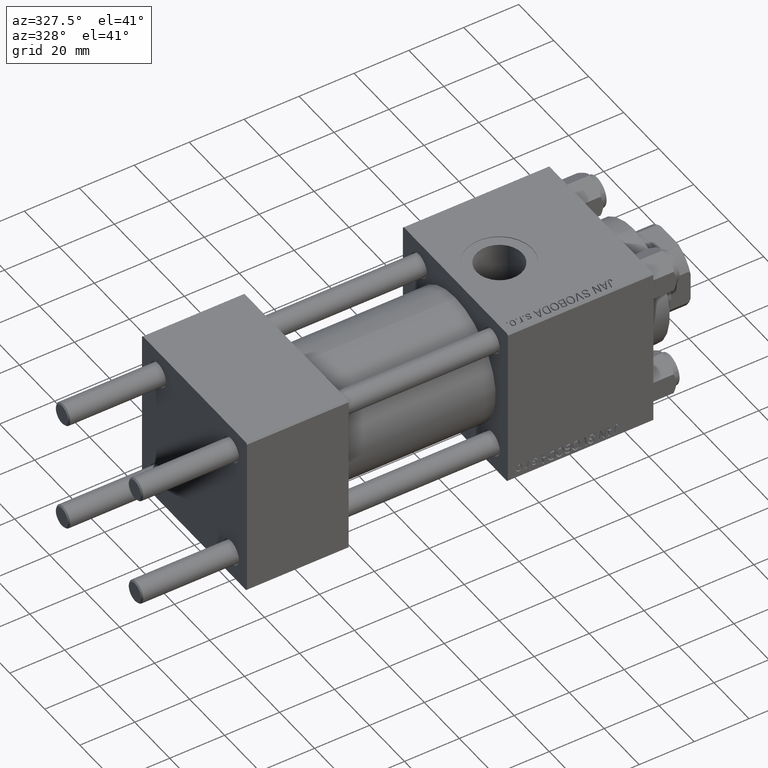
[diagram: clean part render]
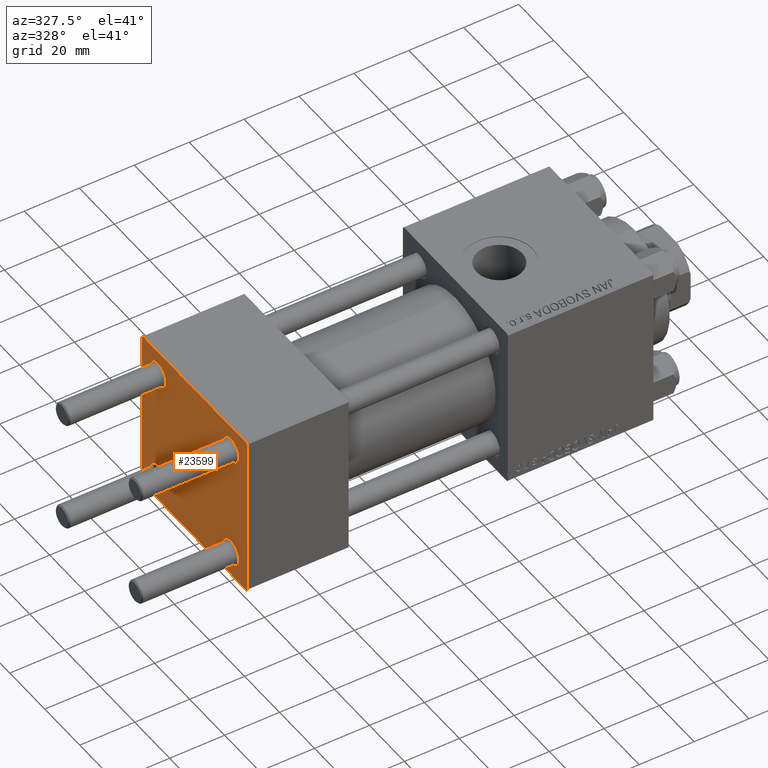
[diagram: same view with one face highlighted and labeled with its STEP entity id]
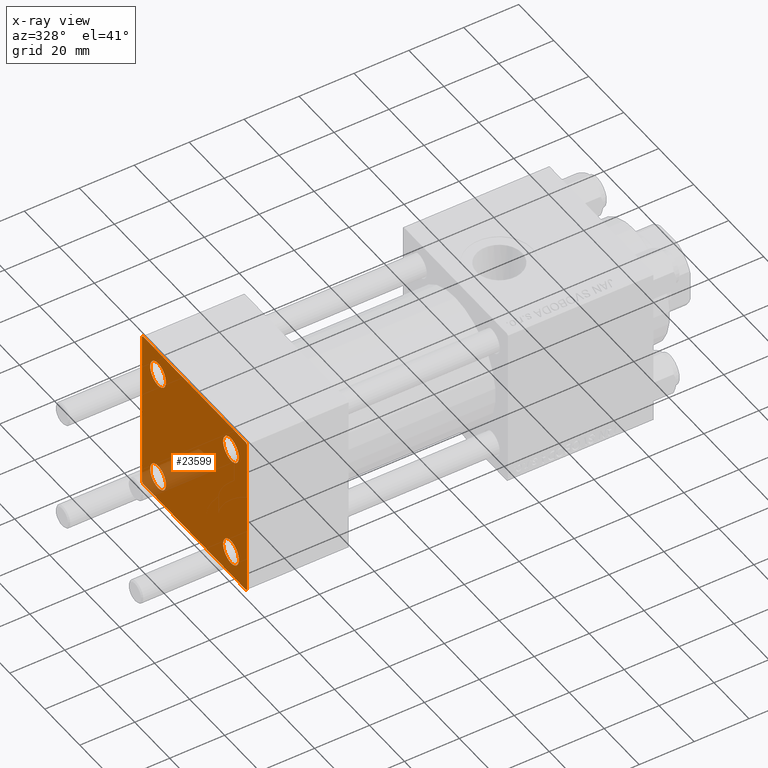
[diagram: x-ray of the same camera — body ghosted, the highlighted face saturated]
A machine part, auxiliary view. The second image highlights one B-rep face of the part: STEP entity #23599.
The next image is the same camera in x-ray: the body ghosted, the highlighted face saturated — about 10% of this face is hidden behind the body in this view.
In plain terms, the highlighted planar face has unit normal (-1, 0, 0).
Its self-contained STEP definition (entity closure, byte-faithful):
#683 = EDGE_LOOP ( 'NONE', ( #32842, #10502 ) ) ;
#699 = VERTEX_POINT ( 'NONE', #13706 ) ;
#726 = EDGE_CURVE ( 'NONE', #23417, #1160, #4176, .T. ) ;
#991 = DIRECTION ( 'NONE',  ( 1.000000000000000000, -0.000000000000000000, 0.000000000000000000 ) ) ;
#1120 = ORIENTED_EDGE ( 'NONE', *, *, #38349, .F. ) ;
#1160 = VERTEX_POINT ( 'NONE', #12114 ) ;
#1555 = DIRECTION ( 'NONE',  ( 0.000000000000000000, -0.7071067811865474617, 0.7071067811865474617 ) ) ;
#1992 = AXIS2_PLACEMENT_3D ( 'NONE', #14550, #45333, #15556 ) ;
#2173 = CIRCLE ( 'NONE', #2948, 4.500000000000017764 ) ;
#2302 = EDGE_CURVE ( 'NONE', #34881, #22903, #49658, .T. ) ;
#2948 = AXIS2_PLACEMENT_3D ( 'NONE', #49080, #5948, #21346 ) ;
#3414 = VECTOR ( 'NONE', #34273, 1000.000000000000114 ) ;
#3493 = ORIENTED_EDGE ( 'NONE', *, *, #35188, .T. ) ;
#3678 = VECTOR ( 'NONE', #36176, 1000.000000000000000 ) ;
#4176 = CIRCLE ( 'NONE', #39638, 4.500000000000017764 ) ;
#4544 = CARTESIAN_POINT ( 'NONE',  ( 0.000000000000000000, 29.99999999999999289, 29.50000000000000000 ) ) ;
#5427 = FACE_BOUND ( 'NONE', #47183, .T. ) ;
#5559 = CARTESIAN_POINT ( 'NONE',  ( 0.000000000000000000, 20.84999999999999787, 20.85000000000000142 ) ) ;
#5671 = PLANE ( 'NONE',  #47405 ) ;
#5948 = DIRECTION ( 'NONE',  ( 1.000000000000000000, -0.000000000000000000, 0.000000000000000000 ) ) ;
#6353 = EDGE_CURVE ( 'NONE', #47283, #17637, #30147, .T. ) ;
#8059 = ORIENTED_EDGE ( 'NONE', *, *, #40250, .T. ) ;
#8081 = DIRECTION ( 'NONE',  ( 1.000000000000000000, -0.000000000000000000, 0.000000000000000000 ) ) ;
#8237 = EDGE_CURVE ( 'NONE', #17637, #47283, #9370, .T. ) ;
#8857 = CARTESIAN_POINT ( 'NONE',  ( 0.000000000000000000, -20.84999999999999076, 25.35000000000002274 ) ) ;
#8890 = CARTESIAN_POINT ( 'NONE',  ( 0.000000000000000000, -29.75000000000001066, -29.75000000000001066 ) ) ;
#9001 = VERTEX_POINT ( 'NONE', #31928 ) ;
#9126 = LINE ( 'NONE', #8890, #40774 ) ;
#9370 = CIRCLE ( 'NONE', #36761, 4.500000000000017764 ) ;
#9437 = DIRECTION ( 'NONE',  ( 1.000000000000000000, -0.000000000000000000, 0.000000000000000000 ) ) ;
#9677 = LINE ( 'NONE', #28852, #3678 ) ;
#9837 = LINE ( 'NONE', #32318, #27463 ) ;
#10056 = VECTOR ( 'NONE', #24026, 1000.000000000000000 ) ;
#10502 = ORIENTED_EDGE ( 'NONE', *, *, #42941, .T. ) ;
#10539 = ORIENTED_EDGE ( 'NONE', *, *, #36741, .T. ) ;
#10660 = DIRECTION ( 'NONE',  ( 1.000000000000000000, -0.000000000000000000, 0.000000000000000000 ) ) ;
#11300 = CARTESIAN_POINT ( 'NONE',  ( 0.000000000000000000, 29.74999999999999645, 29.74999999999999645 ) ) ;
#11609 = ORIENTED_EDGE ( 'NONE', *, *, #36657, .T. ) ;
#12114 = CARTESIAN_POINT ( 'NONE',  ( 0.000000000000000000, 20.84999999999999787, 25.35000000000001918 ) ) ;
#12557 = LINE ( 'NONE', #27955, #20740 ) ;
#12769 = CARTESIAN_POINT ( 'NONE',  ( 0.000000000000000000, -30.00000000000000000, 29.99999999999999289 ) ) ;
#13127 = DIRECTION ( 'NONE',  ( 1.000000000000000000, -0.000000000000000000, 0.000000000000000000 ) ) ;
#13706 = CARTESIAN_POINT ( 'NONE',  ( 0.000000000000000000, 29.99999999999999289, -29.50000000000000000 ) ) ;
#13727 = DIRECTION ( 'NONE',  ( -1.000000000000000000, 0.000000000000000000, -0.000000000000000000 ) ) ;
#14550 = CARTESIAN_POINT ( 'NONE',  ( 0.000000000000000000, -20.84999999999999076, 20.85000000000000497 ) ) ;
#15556 = DIRECTION ( 'NONE',  ( 0.000000000000000000, 0.000000000000000000, 1.000000000000000000 ) ) ;
#16181 = DIRECTION ( 'NONE',  ( 0.000000000000000000, 0.000000000000000000, 1.000000000000000000 ) ) ;
#16204 = DIRECTION ( 'NONE',  ( -0.000000000000000000, 0.7071067811865474617, 0.7071067811865474617 ) ) ;
#16655 = VERTEX_POINT ( 'NONE', #48461 ) ;
#16716 = CARTESIAN_POINT ( 'NONE',  ( 0.000000000000000000, 20.84999999999999787, -16.34999999999998366 ) ) ;
#16863 = EDGE_LOOP ( 'NONE', ( #10539, #37974 ) ) ;
#16936 = ORIENTED_EDGE ( 'NONE', *, *, #41385, .T. ) ;
#17021 = CIRCLE ( 'NONE', #45203, 4.500000000000017764 ) ;
#17637 = VERTEX_POINT ( 'NONE', #38819 ) ;
#18161 = ORIENTED_EDGE ( 'NONE', *, *, #2302, .T. ) ;
#18187 = CIRCLE ( 'NONE', #46406, 4.500000000000017764 ) ;
#18435 = ORIENTED_EDGE ( 'NONE', *, *, #24251, .F. ) ;
#18498 = ORIENTED_EDGE ( 'NONE', *, *, #8237, .T. ) ;
#19185 = CARTESIAN_POINT ( 'NONE',  ( 0.000000000000000000, -20.84999999999999076, -20.85000000000000497 ) ) ;
#19919 = CARTESIAN_POINT ( 'NONE',  ( 0.000000000000000000, -20.84999999999999076, -20.85000000000000497 ) ) ;
#19995 = VECTOR ( 'NONE', #46590, 1000.000000000000000 ) ;
#20740 = VECTOR ( 'NONE', #28206, 999.9999999999998863 ) ;
#20958 = DIRECTION ( 'NONE',  ( 1.000000000000000000, -0.000000000000000000, 0.000000000000000000 ) ) ;
#21346 = DIRECTION ( 'NONE',  ( 0.000000000000000000, 0.000000000000000000, 1.000000000000000000 ) ) ;
#21992 = CARTESIAN_POINT ( 'NONE',  ( 0.000000000000000000, 29.49999999999999289, 30.00000000000000000 ) ) ;
#22903 = VERTEX_POINT ( 'NONE', #4544 ) ;
#23162 = ORIENTED_EDGE ( 'NONE', *, *, #42247, .T. ) ;
#23417 = VERTEX_POINT ( 'NONE', #33963 ) ;
#23432 = CARTESIAN_POINT ( 'NONE',  ( 0.000000000000000000, -20.84999999999999076, 16.34999999999998721 ) ) ;
#23462 = DIRECTION ( 'NONE',  ( 0.000000000000000000, 0.000000000000000000, 1.000000000000000000 ) ) ;
#23599 = ADVANCED_FACE ( 'NONE', ( #44019, #5427, #44267, #32423, #25344 ), #5671, .T. ) ;
#24026 = DIRECTION ( 'NONE',  ( 0.000000000000000000, -1.000000000000000000, -1.156482317317871725E-16 ) ) ;
#24251 = EDGE_CURVE ( 'NONE', #16655, #47040, #38998, .T. ) ;
#25344 = FACE_OUTER_BOUND ( 'NONE', #40800, .T. ) ;
#25605 = EDGE_CURVE ( 'NONE', #699, #9001, #12557, .T. ) ;
#26558 = VECTOR ( 'NONE', #16204, 1000.000000000000114 ) ;
#26757 = VERTEX_POINT ( 'NONE', #45807 ) ;
#27066 = CARTESIAN_POINT ( 'NONE',  ( 0.000000000000000000, 20.84999999999999787, -20.85000000000000142 ) ) ;
#27463 = VECTOR ( 'NONE', #47707, 1000.000000000000000 ) ;
#27955 = CARTESIAN_POINT ( 'NONE',  ( 0.000000000000000000, 29.74999999999957723, -29.75000000000040501 ) ) ;
#28206 = DIRECTION ( 'NONE',  ( -0.000000000000000000, -0.7071067811865574537, -0.7071067811865376918 ) ) ;
#28609 = CARTESIAN_POINT ( 'NONE',  ( 0.000000000000000000, 20.84999999999999787, 20.85000000000000142 ) ) ;
#28852 = CARTESIAN_POINT ( 'NONE',  ( 0.000000000000000000, 29.99999999999999289, -30.00000000000000000 ) ) ;
#29406 = CIRCLE ( 'NONE', #1992, 4.500000000000017764 ) ;
#30147 = CIRCLE ( 'NONE', #34182, 4.500000000000017764 ) ;
#30846 = LINE ( 'NONE', #34880, #26558 ) ;
#31428 = EDGE_CURVE ( 'NONE', #16655, #49654, #30846, .T. ) ;
#31433 = EDGE_LOOP ( 'NONE', ( #16936, #11609 ) ) ;
#31664 = AXIS2_PLACEMENT_3D ( 'NONE', #5559, #20958, #16181 ) ;
#31928 = CARTESIAN_POINT ( 'NONE',  ( 0.000000000000000000, 29.49999999999997868, -30.00000000000000000 ) ) ;
#32079 = DIRECTION ( 'NONE',  ( 0.000000000000000000, 0.000000000000000000, 1.000000000000000000 ) ) ;
#32318 = CARTESIAN_POINT ( 'NONE',  ( 0.000000000000000000, 29.99999999999999289, 30.00000000000000000 ) ) ;
#32423 = FACE_BOUND ( 'NONE', #16863, .T. ) ;
#32842 = ORIENTED_EDGE ( 'NONE', *, *, #38017, .T. ) ;
#33963 = CARTESIAN_POINT ( 'NONE',  ( 0.000000000000000000, 20.84999999999999787, 16.34999999999998366 ) ) ;
#34182 = AXIS2_PLACEMENT_3D ( 'NONE', #19919, #991, #35308 ) ;
#34273 = DIRECTION ( 'NONE',  ( 0.000000000000000000, 0.7071067811865474617, -0.7071067811865474617 ) ) ;
#34880 = CARTESIAN_POINT ( 'NONE',  ( -0.000000000000000000, -29.74999999999999645, 29.74999999999999645 ) ) ;
#34881 = VERTEX_POINT ( 'NONE', #21992 ) ;
#35188 = EDGE_CURVE ( 'NONE', #22903, #699, #9837, .T. ) ;
#35308 = DIRECTION ( 'NONE',  ( 0.000000000000000000, 0.000000000000000000, 1.000000000000000000 ) ) ;
#35395 = DIRECTION ( 'NONE',  ( 0.000000000000000000, 0.000000000000000000, 1.000000000000000000 ) ) ;
#35656 = CARTESIAN_POINT ( 'NONE',  ( 0.000000000000000000, -30.00000000000000000, -29.50000000000001776 ) ) ;
#36176 = DIRECTION ( 'NONE',  ( 0.000000000000000000, -1.000000000000000000, -1.156482317317871725E-16 ) ) ;
#36203 = CARTESIAN_POINT ( 'NONE',  ( 0.000000000000000000, 0.000000000000000000, 0.000000000000000000 ) ) ;
#36657 = EDGE_CURVE ( 'NONE', #41901, #46147, #17021, .T. ) ;
#36741 = EDGE_CURVE ( 'NONE', #1160, #23417, #49396, .T. ) ;
#36761 = AXIS2_PLACEMENT_3D ( 'NONE', #19185, #8081, #23462 ) ;
#37264 = CARTESIAN_POINT ( 'NONE',  ( 0.000000000000000000, 20.84999999999999787, -25.35000000000001918 ) ) ;
#37501 = CARTESIAN_POINT ( 'NONE',  ( 0.000000000000000000, -29.49999999999998579, 29.99999999999999289 ) ) ;
#37826 = ORIENTED_EDGE ( 'NONE', *, *, #6353, .T. ) ;
#37974 = ORIENTED_EDGE ( 'NONE', *, *, #726, .T. ) ;
#38017 = EDGE_CURVE ( 'NONE', #47625, #48729, #29406, .T. ) ;
#38349 = EDGE_CURVE ( 'NONE', #34881, #49654, #43198, .T. ) ;
#38819 = CARTESIAN_POINT ( 'NONE',  ( 0.000000000000000000, -20.84999999999999076, -25.35000000000002274 ) ) ;
#38998 = LINE ( 'NONE', #12769, #19995 ) ;
#39487 = ORIENTED_EDGE ( 'NONE', *, *, #31428, .T. ) ;
#39638 = AXIS2_PLACEMENT_3D ( 'NONE', #28609, #9437, #44245 ) ;
#40124 = CARTESIAN_POINT ( 'NONE',  ( 0.000000000000000000, 20.84999999999999787, -20.85000000000000142 ) ) ;
#40250 = EDGE_CURVE ( 'NONE', #9001, #26757, #9677, .T. ) ;
#40774 = VECTOR ( 'NONE', #1555, 1000.000000000000114 ) ;
#40800 = EDGE_LOOP ( 'NONE', ( #3493, #47875, #8059, #23162, #18435, #39487, #1120, #18161 ) ) ;
#41385 = EDGE_CURVE ( 'NONE', #46147, #41901, #18187, .T. ) ;
#41901 = VERTEX_POINT ( 'NONE', #37264 ) ;
#42247 = EDGE_CURVE ( 'NONE', #26757, #47040, #9126, .T. ) ;
#42941 = EDGE_CURVE ( 'NONE', #48729, #47625, #2173, .T. ) ;
#43198 = LINE ( 'NONE', #46226, #10056 ) ;
#44019 = FACE_BOUND ( 'NONE', #683, .T. ) ;
#44245 = DIRECTION ( 'NONE',  ( 0.000000000000000000, 0.000000000000000000, 1.000000000000000000 ) ) ;
#44267 = FACE_BOUND ( 'NONE', #31433, .T. ) ;
#45203 = AXIS2_PLACEMENT_3D ( 'NONE', #40124, #13127, #32079 ) ;
#45333 = DIRECTION ( 'NONE',  ( 1.000000000000000000, -0.000000000000000000, 0.000000000000000000 ) ) ;
#45807 = CARTESIAN_POINT ( 'NONE',  ( 0.000000000000000000, -29.50000000000000000, -30.00000000000000711 ) ) ;
#46147 = VERTEX_POINT ( 'NONE', #16716 ) ;
#46226 = CARTESIAN_POINT ( 'NONE',  ( 0.000000000000000000, 29.99999999999999289, 30.00000000000000000 ) ) ;
#46406 = AXIS2_PLACEMENT_3D ( 'NONE', #27066, #10660, #35395 ) ;
#46590 = DIRECTION ( 'NONE',  ( 0.000000000000000000, 0.000000000000000000, -1.000000000000000000 ) ) ;
#46761 = CARTESIAN_POINT ( 'NONE',  ( 0.000000000000000000, -20.84999999999999076, -16.34999999999998721 ) ) ;
#47040 = VERTEX_POINT ( 'NONE', #35656 ) ;
#47183 = EDGE_LOOP ( 'NONE', ( #37826, #18498 ) ) ;
#47283 = VERTEX_POINT ( 'NONE', #46761 ) ;
#47405 = AXIS2_PLACEMENT_3D ( 'NONE', #36203, #13727, #48557 ) ;
#47625 = VERTEX_POINT ( 'NONE', #8857 ) ;
#47707 = DIRECTION ( 'NONE',  ( 0.000000000000000000, 0.000000000000000000, -1.000000000000000000 ) ) ;
#47875 = ORIENTED_EDGE ( 'NONE', *, *, #25605, .T. ) ;
#48461 = CARTESIAN_POINT ( 'NONE',  ( 0.000000000000000000, -30.00000000000000000, 29.49999999999999289 ) ) ;
#48557 = DIRECTION ( 'NONE',  ( -0.000000000000000000, 0.000000000000000000, 1.000000000000000000 ) ) ;
#48729 = VERTEX_POINT ( 'NONE', #23432 ) ;
#49080 = CARTESIAN_POINT ( 'NONE',  ( 0.000000000000000000, -20.84999999999999076, 20.85000000000000497 ) ) ;
#49396 = CIRCLE ( 'NONE', #31664, 4.500000000000017764 ) ;
#49654 = VERTEX_POINT ( 'NONE', #37501 ) ;
#49658 = LINE ( 'NONE', #11300, #3414 ) ;